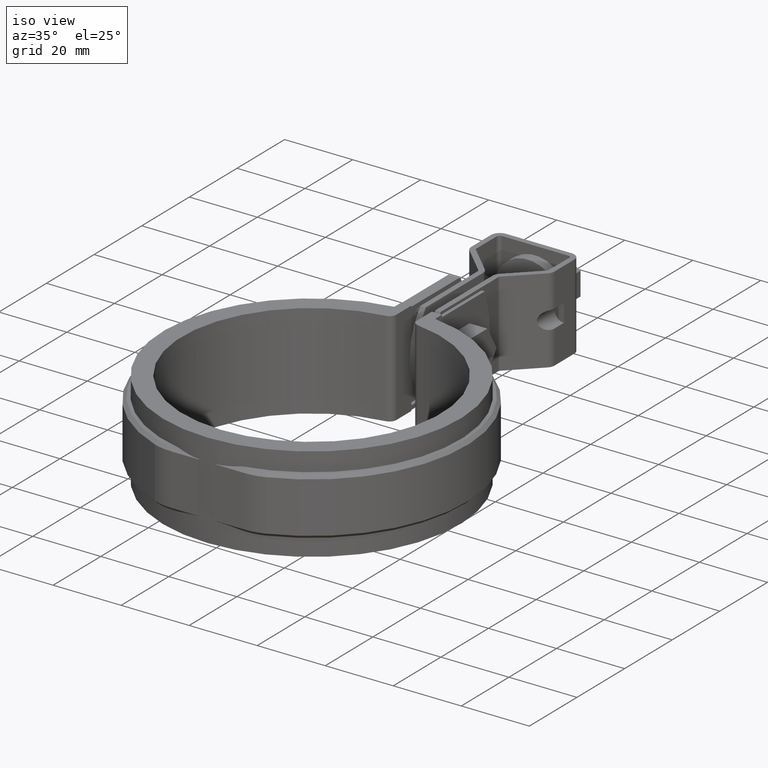
[diagram: clean part render]
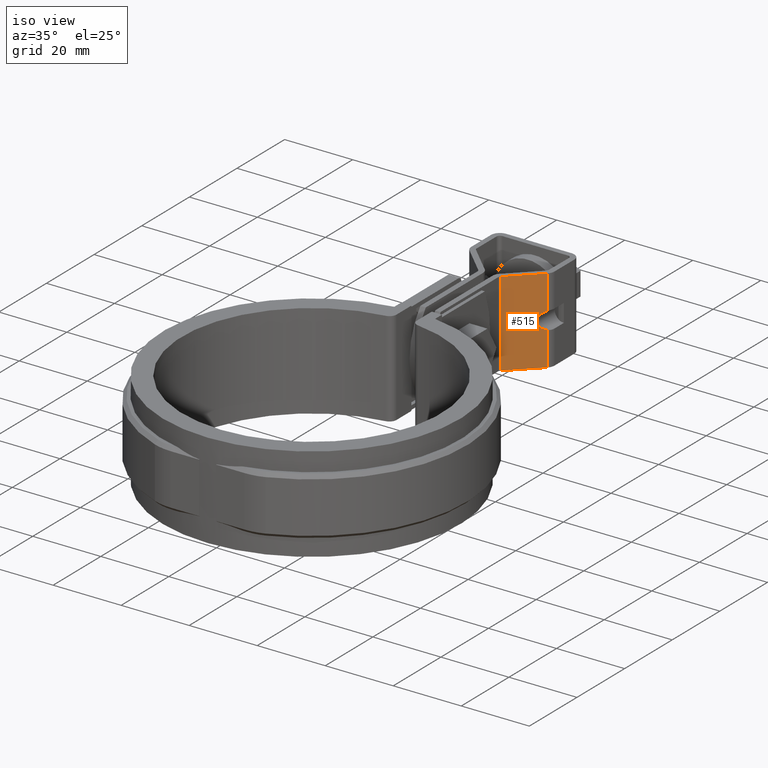
[diagram: same view with one face highlighted and labeled with its STEP entity id]
A machine part, iso view. The second image highlights one B-rep face of the part: STEP entity #515.
In plain terms, the highlighted planar face has unit normal (0.6983, -0.7158, 0).
Its self-contained STEP definition (entity closure, byte-faithful):
#515 = ADVANCED_FACE( '', ( #1015 ), #1016, .T. );
#1015 = FACE_OUTER_BOUND( '', #2258, .T. );
#1016 = PLANE( '', #2259 );
#2258 = EDGE_LOOP( '', ( #4690, #4691, #4692, #4693, #4694, #4695 ) );
#2259 = AXIS2_PLACEMENT_3D( '', #4696, #4697, #4698 );
#4690 = ORIENTED_EDGE( '', *, *, #6518, .T. );
#4691 = ORIENTED_EDGE( '', *, *, #6592, .F. );
#4692 = ORIENTED_EDGE( '', *, *, #6530, .T. );
#4693 = ORIENTED_EDGE( '', *, *, #6539, .F. );
#4694 = ORIENTED_EDGE( '', *, *, #6486, .F. );
#4695 = ORIENTED_EDGE( '', *, *, #6563, .F. );
#4696 = CARTESIAN_POINT( '', ( 3.90167616447229, 75.2503979413678, 12.5000000000035 ) );
#4697 = DIRECTION( '', ( 0.698323835530497, -0.715781964518509, 9.71445964287386E-016 ) );
#4698 = DIRECTION( '', ( 1.37720093258499E-031, -1.35718139383528E-015, -1.00000000000000 ) );
#6486 = EDGE_CURVE( '', #7638, #7640, #7641, .F. );
#6518 = EDGE_CURVE( '', #7702, #7700, #7703, .T. );
#6530 = EDGE_CURVE( '', #7724, #7725, #7726, .F. );
#6539 = EDGE_CURVE( '', #7640, #7725, #7741, .T. );
#6563 = EDGE_CURVE( '', #7702, #7638, #7772, .T. );
#6592 = EDGE_CURVE( '', #7724, #7700, #7815, .T. );
#7638 = VERTEX_POINT( '', #10979 );
#7640 = VERTEX_POINT( '', #10981 );
#7641 = LINE( '', #10982, #10983 );
#7700 = VERTEX_POINT( '', #11059 );
#7702 = VERTEX_POINT( '', #11061 );
#7703 = LINE( '', #11062, #11063 );
#7724 = VERTEX_POINT( '', #11090 );
#7725 = VERTEX_POINT( '', #11091 );
#7726 = ELLIPSE( '', #11092, 3.70224472166266, 2.64999999999997 );
#7741 = LINE( '', #11126, #11127 );
#7772 = LINE( '', #11185, #11186 );
#7815 = LINE( '', #11266, #11267 );
#10979 = CARTESIAN_POINT( '', ( 3.30167616447228, 74.6650321147782, 12.5000000000035 ) );
#10981 = CARTESIAN_POINT( '', ( 11.4656419723821, 82.6298764371055, 12.5000000000040 ) );
#10982 = CARTESIAN_POINT( '', ( 5.72823783055782, 77.0324092405095, 12.5000000000036 ) );
#10983 = VECTOR( '', #12843, 1000.00000000000 );
#11059 = CARTESIAN_POINT( '', ( 11.4656419723829, 82.6298764371062, -12.4999999999960 ) );
#11061 = CARTESIAN_POINT( '', ( 3.30167616447305, 74.6650321147789, -12.4999999999965 ) );
#11062 = CARTESIAN_POINT( '', ( 3.90167616447305, 75.2503979413685, -12.4999999999965 ) );
#11063 = VECTOR( '', #12903, 1000.00000000000 );
#11090 = CARTESIAN_POINT( '', ( 11.4656419723825, 82.6298764371059, -2.53126104629427 ) );
#11091 = CARTESIAN_POINT( '', ( 11.4656419723824, 82.6298764371057, 2.53126104630224 ) );
#11092 = AXIS2_PLACEMENT_3D( '', #12925, #12926, #12927 );
#11126 = CARTESIAN_POINT( '', ( 11.4656419723821, 82.6298764371055, 12.5000000000040 ) );
#11127 = VECTOR( '', #12940, 1000.00000000000 );
#11185 = CARTESIAN_POINT( '', ( 3.30167616447228, 74.6650321147782, 12.5000000000035 ) );
#11186 = VECTOR( '', #12970, 1000.00000000000 );
#11266 = CARTESIAN_POINT( '', ( 11.4656419723821, 82.6298764371055, 12.5000000000040 ) );
#11267 = VECTOR( '', #13010, 1000.00000000000 );
#12843 = DIRECTION( '', ( -0.715781964518509, -0.698323835530497, -4.17751229416793E-014 ) );
#12903 = DIRECTION( '', ( 0.715781964518509, 0.698323835530497, 4.17751229416793E-014 ) );
#12925 = CARTESIAN_POINT( '', ( 12.2500000000031, 83.3951037457396, 4.02816668909630E-012 ) );
#12926 = DIRECTION( '', ( 0.698323835530497, -0.715781964518509, 9.71445964287386E-016 ) );
#12927 = DIRECTION( '', ( -0.715781964518509, -0.698323835530497, -4.17751229416792E-014 ) );
#12940 = DIRECTION( '', ( 3.05802634389892E-014, 2.84772205816503E-014, -1.00000000000000 ) );
#12970 = DIRECTION( '', ( -3.06414937566803E-014, -2.85369574741963E-014, 1.00000000000000 ) );
#13010 = DIRECTION( '', ( 3.05802634389892E-014, 2.84772205816503E-014, -1.00000000000000 ) );